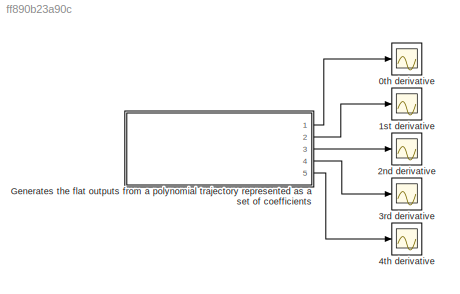
MODEL slx_ff890b23a90c
KIND model
CONFIG AbsTol = auto
CONFIG FixedStep = auto
CONFIG MaxStep = auto
CONFIG MinStep = auto
CONFIG RelTol = 1e-3
CONFIG SampleTimeConstraint = Unconstrained
CONFIG Solver = VariableStepAuto
CONFIG SolverMode = Auto
CONFIG SolverName = VariableStepAuto
CONFIG StartTime = 0.0
CONFIG StopTime = 30.0
BLOCK [Scope] 0th derivative
  Ports = [1]
  ScopeSpecificationString = Simulink.scopes.TimeScopeBlockCfg('CurrentConfiguration', extmgr.ConfigurationSet(extmgr.Configuration('Core','General UI',true),extmgr.Configuration('Core','Source UI',true),extmgr.Configuration('Sources','WiredSimulink',true),extmgr.Configuration('Visuals','Time Domain',true,'SerializedDisplays',{struct('MinYLimReal','-0.25882','MaxYLimReal','2.25882','YLabelReal','','MinYLimMag','0.00000','MaxY...<+1713ch>
BLOCK [Scope] 1st derivative
  Ports = [1]
  ScopeSpecificationString = Simulink.scopes.TimeScopeBlockCfg('CurrentConfiguration', extmgr.ConfigurationSet(extmgr.Configuration('Core','General UI',true),extmgr.Configuration('Core','Source UI',true),extmgr.Configuration('Sources','WiredSimulink',true,'DataLoggingVariableName','ScopeData1'),extmgr.Configuration('Visuals','Time Domain',true,'SerializedDisplays',{struct('MinYLimReal','-0.25882','MaxYLimReal','2.25882','YLab...<+1752ch>
BLOCK [Scope] 2nd derivative
  Ports = [1]
  ScopeSpecificationString = Simulink.scopes.TimeScopeBlockCfg('CurrentConfiguration', extmgr.ConfigurationSet(extmgr.Configuration('Core','General UI',true),extmgr.Configuration('Core','Source UI',true),extmgr.Configuration('Sources','WiredSimulink',true,'DataLoggingVariableName','ScopeData2'),extmgr.Configuration('Visuals','Time Domain',true,'SerializedDisplays',{struct('MinYLimReal','-0.25882','MaxYLimReal','2.25882','YLab...<+1752ch>
BLOCK [Scope] 3rd derivative
  Ports = [1]
  ScopeSpecificationString = Simulink.scopes.TimeScopeBlockCfg('CurrentConfiguration', extmgr.ConfigurationSet(extmgr.Configuration('Core','General UI',true),extmgr.Configuration('Core','Source UI',true),extmgr.Configuration('Sources','WiredSimulink',true,'DataLoggingVariableName','ScopeData3'),extmgr.Configuration('Visuals','Time Domain',true,'SerializedDisplays',{struct('MinYLimReal','-0.25882','MaxYLimReal','2.25882','YLab...<+1752ch>
BLOCK [Scope] 4th derivative
  Ports = [1]
  ScopeSpecificationString = Simulink.scopes.TimeScopeBlockCfg('CurrentConfiguration', extmgr.ConfigurationSet(extmgr.Configuration('Core','General UI',true),extmgr.Configuration('Core','Source UI',true),extmgr.Configuration('Sources','WiredSimulink',true,'DataLoggingVariableName','ScopeData4'),extmgr.Configuration('Visuals','Time Domain',true,'SerializedDisplays',{struct('MinYLimReal','-0.25882','MaxYLimReal','2.25882','YLab...<+1752ch>
BLOCK [ModelReference] Generates the flat outputs from a polynomial trajectory represented as a set of coefficients
  ModelNameDialog = trajectory_evaluator.slx
  ModelReferenceVersion = 1.106
  Ports = [0, 5]
  Variant = off
LINE Generates the flat outputs from a polynomial trajectory represented as a set of coefficients:1 -> 0th derivative:1
LINE Generates the flat outputs from a polynomial trajectory represented as a set of coefficients:2 -> 1st derivative:1
LINE Generates the flat outputs from a polynomial trajectory represented as a set of coefficients:3 -> 2nd derivative:1
LINE Generates the flat outputs from a polynomial trajectory represented as a set of coefficients:4 -> 3rd derivative:1
LINE Generates the flat outputs from a polynomial trajectory represented as a set of coefficients:5 -> 4th derivative:1
